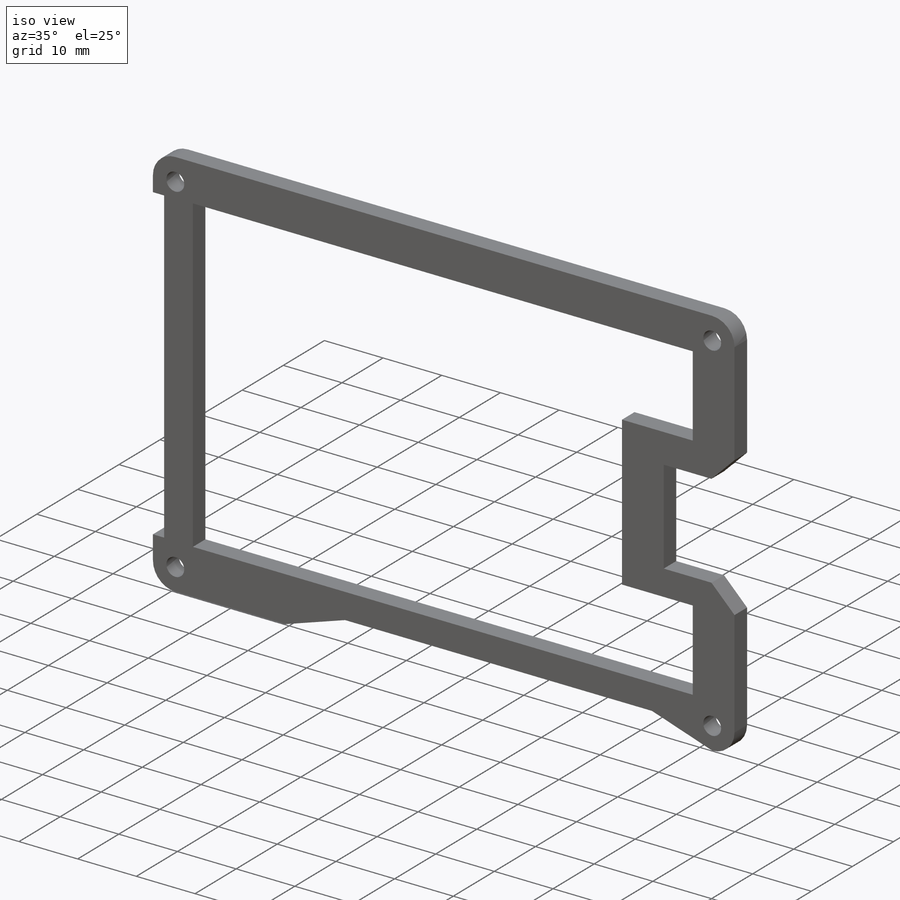
[diagram: iso view]
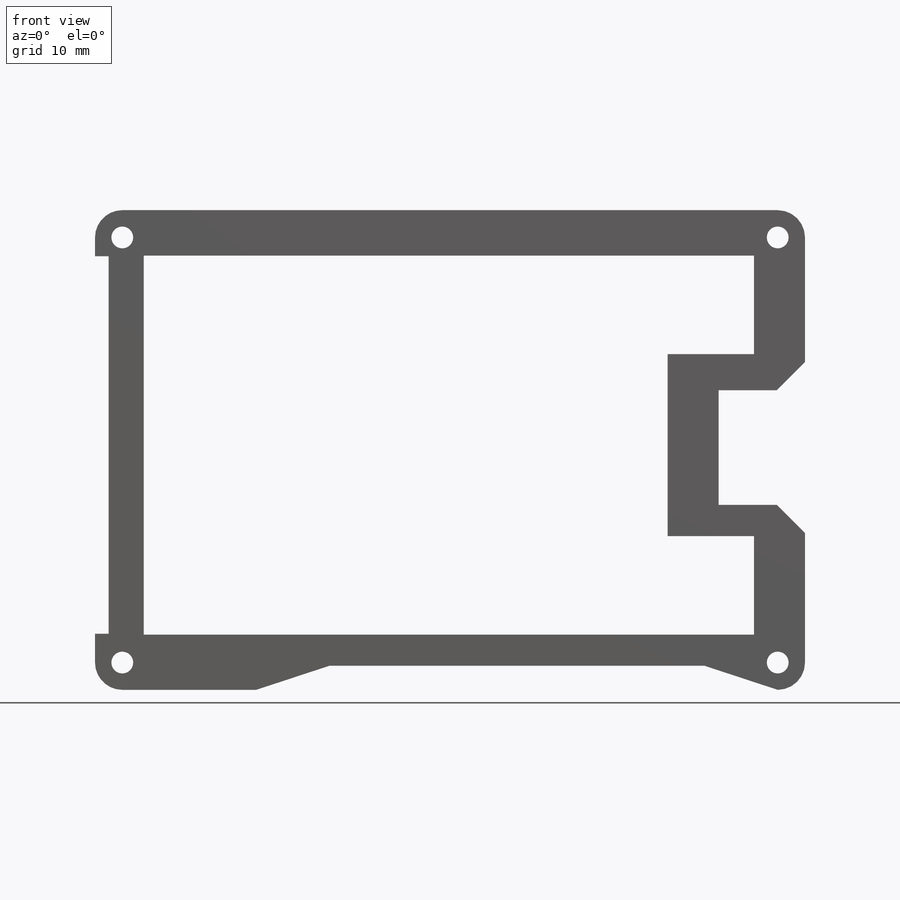
[diagram: front view]
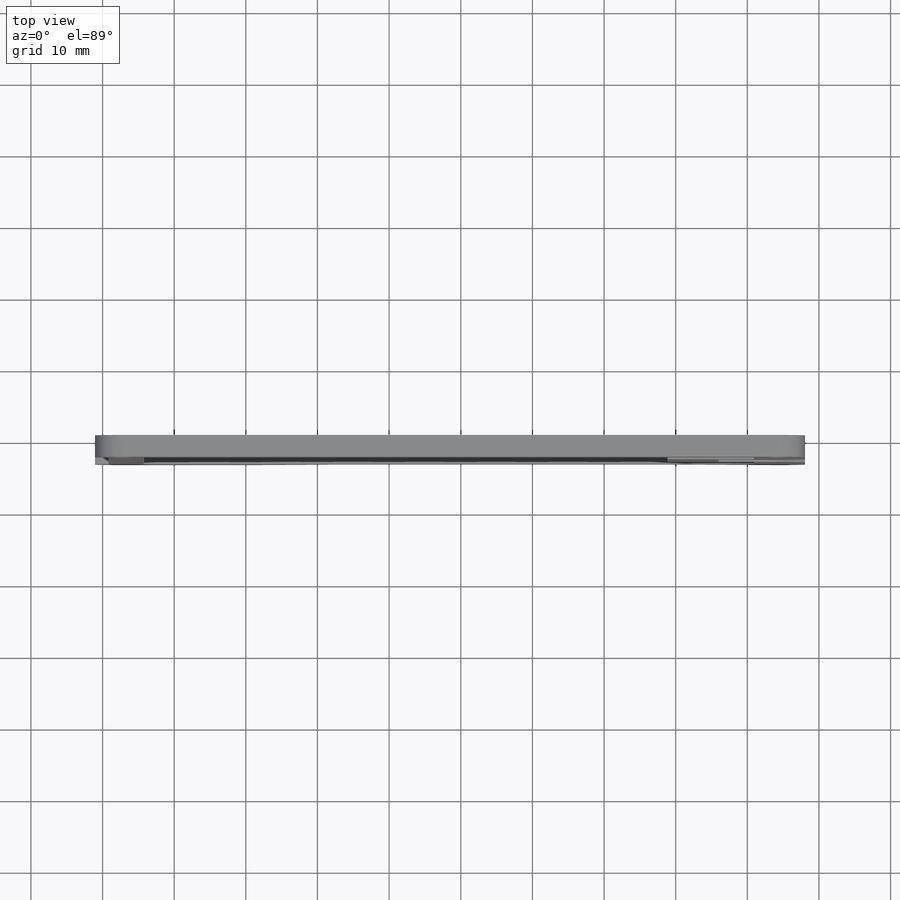
[diagram: top view]
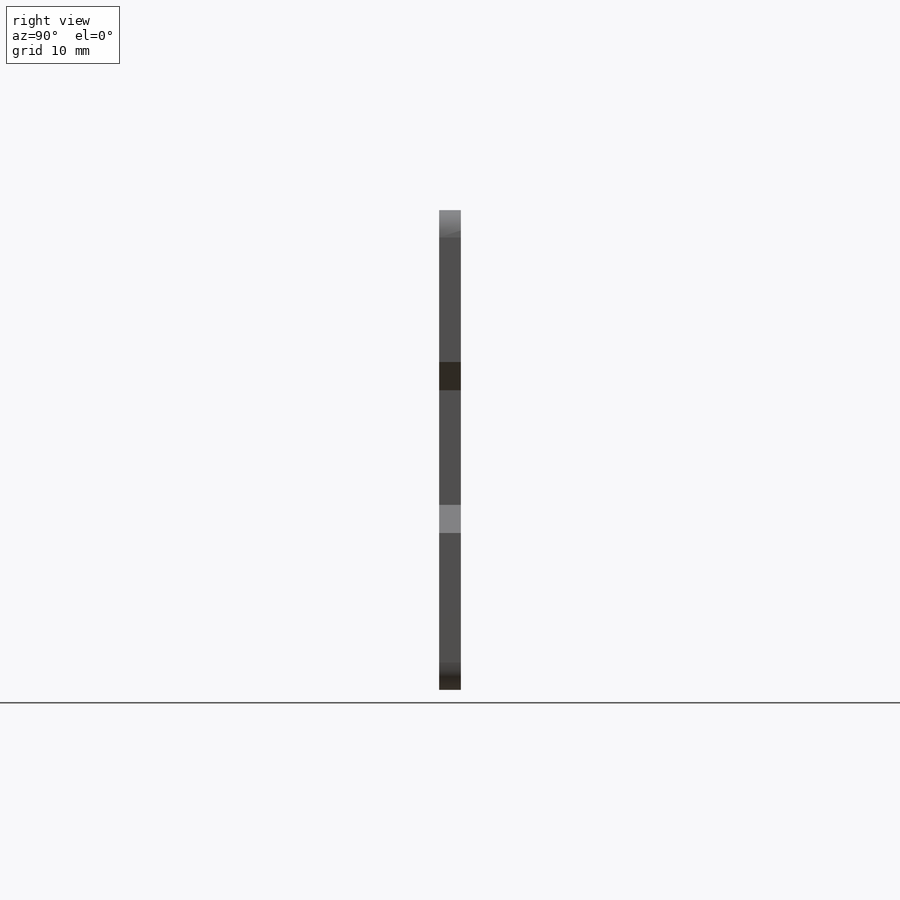
[diagram: right view]
SOLIDWORKS PART (.sldprt)
format: sldprt  version: not decoded by parser v0  size: 339,968 bytes
history: native  units: mm
features: sketch x7, cut_extrude x5, extrude x2, material x1 (+11 scaffold rows collapsed)
feature tree (26):
  scaffold x11  (default folders/planes/origin — collapsed)
  material  "Material <not specified>"
  sketch  "Sketch1"  dims[c1.D1=6.2992mm c1.D2=13.208mm c2.D2=~179.732936deg c3.D2=13.208mm c3.D1=12.065mm]
  extrude  "Boss-Extrude1"  Depth=3.048mm
  sketch  "Sketch2"  dims[D1=~2.711801mm]
  cut_extrude  "Cut-Extrude1"  [1 undecoded]
  sketch  "Sketch3"  dims[D1=3.048mm]
  cut_extrude  "Cut-Extrude2"  [1 undecoded]
  sketch  "Sketch4"  dims[D1=15.24mm D2=13.97mm D3=3.048mm D4=3.048mm D5=21.082mm]
  cut_extrude  "Cut-Extrude3"  [1 undecoded]
  extrude  "Boss-Extrude2"  [1 undecoded]
  sketch  "Sketch4<4>"
  sketch  "Sketch5"  dims[D1=6.35mm D2=4.3434mm D3=4.9022mm D4=7.112mm D5=10.16mm D6=25.4mm]
  cut_extrude  "Cut-Extrude4"  [1 undecoded]
  sketch  "Sketch6"  dims[D1=3.048mm D2=3.048mm]
  cut_extrude  "Cut-Extrude5"  [1 undecoded]
decode coverage: 7 of 14 modeling features carry decoded parameters
note: ~ marks probable driven/reference dimensions
note: 6 parameter values undecoded
summary: no parameter record found for 6 features
note: suppression state not decoded; provenance and decode notes live in map.json
